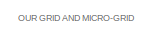
[diagram: root canvas - part 1/4, top center region]
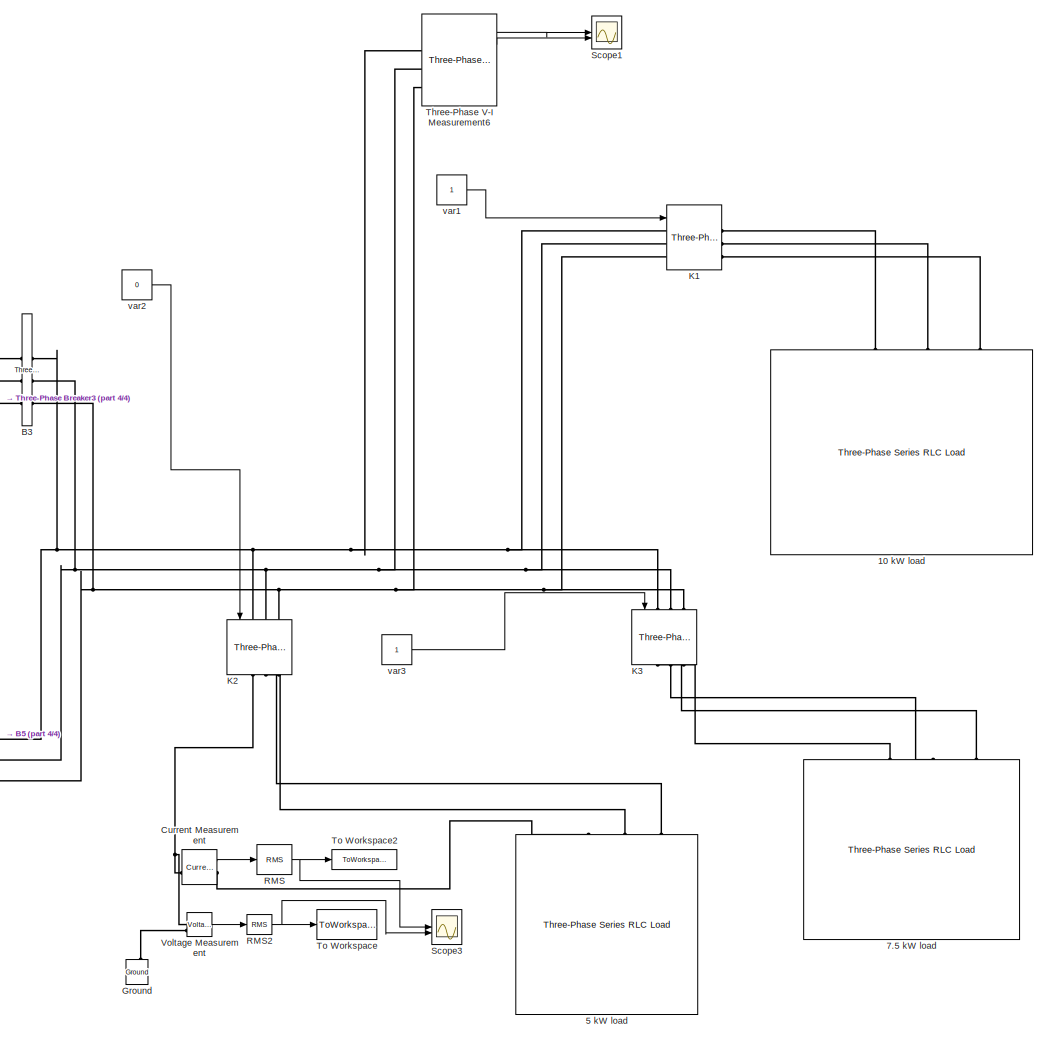
[diagram: root canvas - part 2/4, right side, full height]
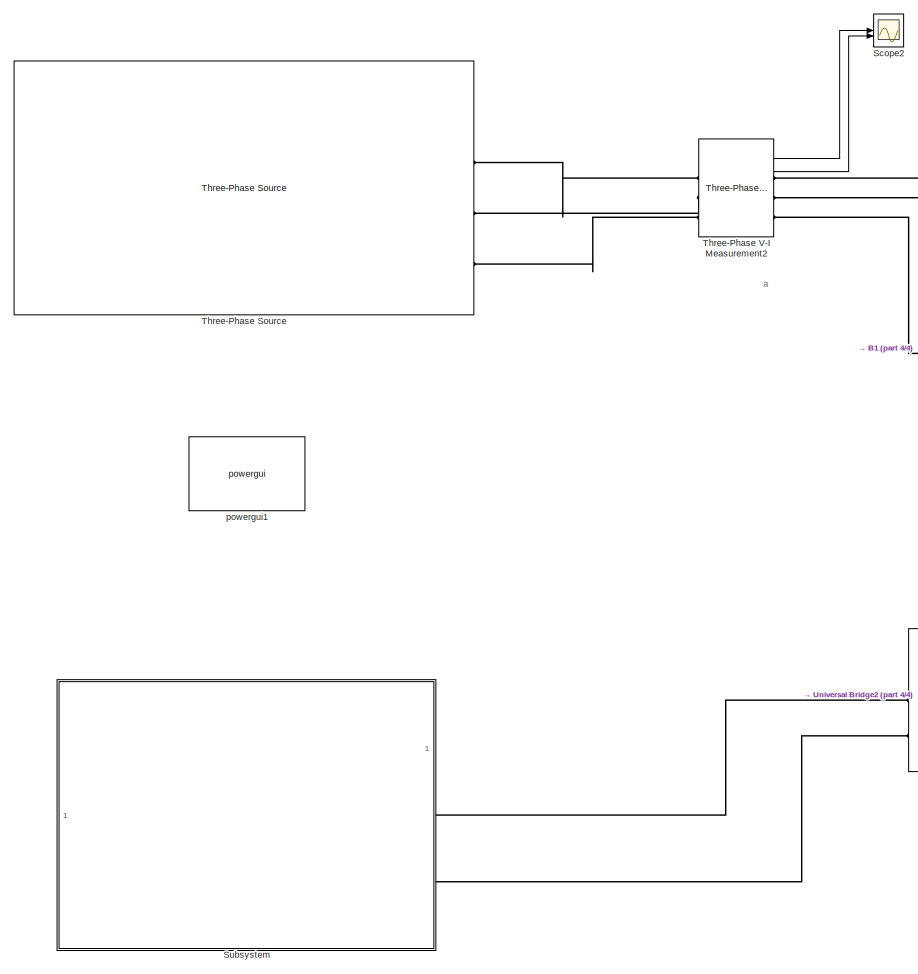
[diagram: root canvas - part 3/4, left side, full height]
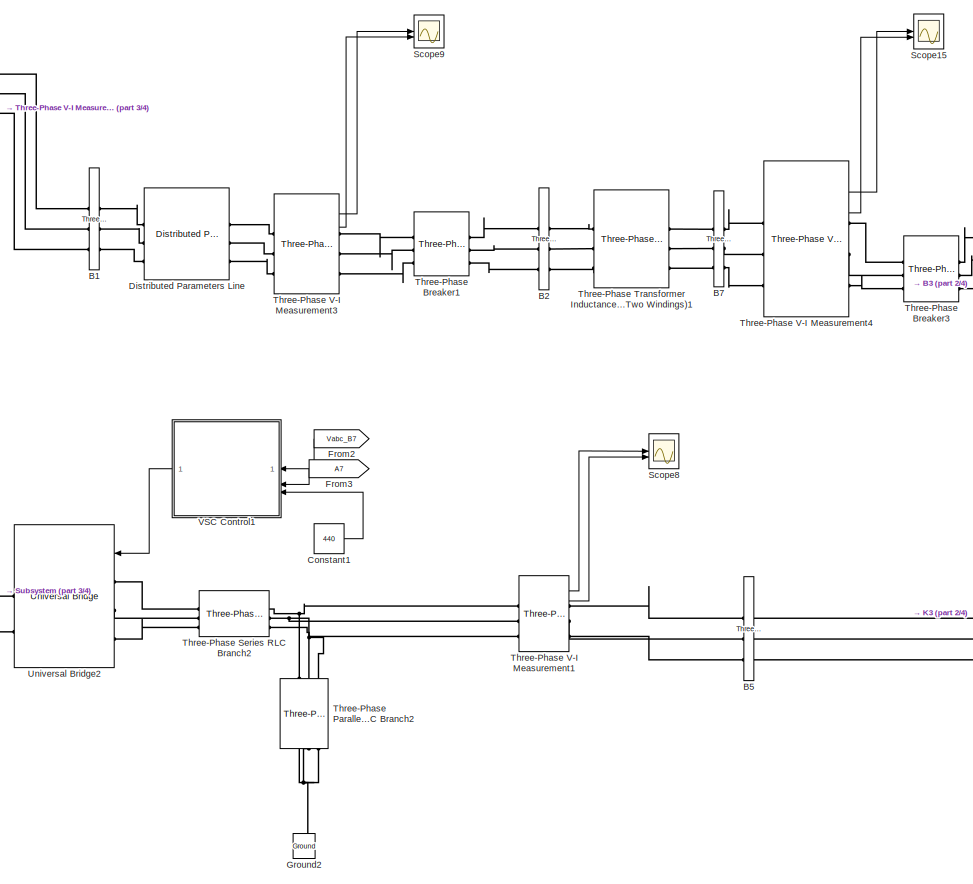
[diagram: root canvas - part 4/4, center side, full height]
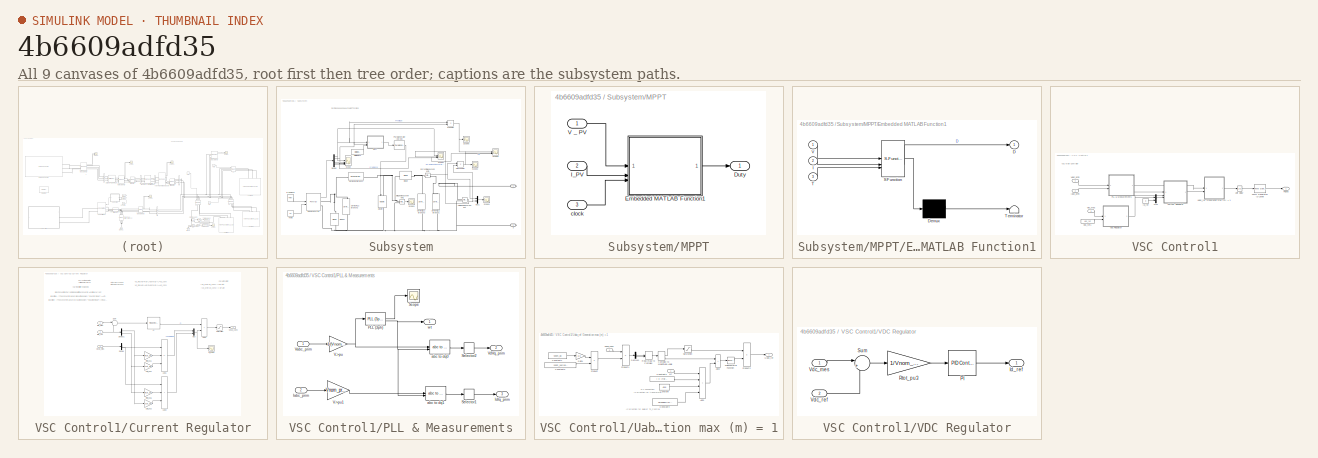
[diagram: thumbnail index - all 9 canvases of the model, root first then tree order]
MODEL slx_4b6609adfd35
KIND model
CONFIG AbsTol = auto
CONFIG EnableMultiTasking = off
CONFIG FixedStep = auto
CONFIG MaxStep = auto
CONFIG MinStep = auto
CONFIG RelTol = 1e-3
CONFIG SampleTimeConstraint = Unconstrained
CONFIG SolverName = VariableStepAuto
CONFIG StartTime = 0.0
CONFIG StopTime = 0.5
BLOCK [Reference] 10 kW load   REF=spsThreePhaseSeriesRLCLoadLib/Three-Phase
Series RLC Load
  AttributesFormatString = \n
  LibrarySourceBlock = sps_lib/Passives/Three-Phase\nSeries RLC Load
  NameLocation = right
  SourceBlock = spsThreePhaseSeriesRLCLoadLib/Three-Phase\nSeries RLC Load
  SourceType = Three-Phase Series RLC Load
BLOCK [Reference] 5 kW load   REF=spsThreePhaseSeriesRLCLoadLib/Three-Phase
Series RLC Load
  AttributesFormatString = \n
  LibrarySourceBlock = sps_lib/Passives/Three-Phase\nSeries RLC Load
  NameLocation = right
  SourceBlock = spsThreePhaseSeriesRLCLoadLib/Three-Phase\nSeries RLC Load
  SourceType = Three-Phase Series RLC Load
BLOCK [Reference] 7.5 kW load   REF=spsThreePhaseSeriesRLCLoadLib/Three-Phase
Series RLC Load
  AttributesFormatString = \n
  LibrarySourceBlock = sps_lib/Passives/Three-Phase\nSeries RLC Load
  NameLocation = right
  SourceBlock = spsThreePhaseSeriesRLCLoadLib/Three-Phase\nSeries RLC Load
  SourceType = Three-Phase Series RLC Load
BLOCK [Reference] B1  REF=spsThreePhaseVIMeasurementLib/Three-Phase
V-I Measurement
  LibrarySourceBlock = sps_lib/Sensors and Measurements/Three-Phase\nV-I Measurement
  NameLocation = top
  SourceBlock = spsThreePhaseVIMeasurementLib/Three-Phase\nV-I Measurement
  SourceType = Three-Phase VI Measurement
BLOCK [Reference] B2  REF=spsThreePhaseVIMeasurementLib/Three-Phase
V-I Measurement
  LibrarySourceBlock = sps_lib/Sensors and Measurements/Three-Phase\nV-I Measurement
  NameLocation = top
  SourceBlock = spsThreePhaseVIMeasurementLib/Three-Phase\nV-I Measurement
  SourceType = Three-Phase VI Measurement
BLOCK [Reference] B3  REF=spsThreePhaseVIMeasurementLib/Three-Phase
V-I Measurement
  LibrarySourceBlock = sps_lib/Sensors and Measurements/Three-Phase\nV-I Measurement
  NameLocation = top
  SourceBlock = spsThreePhaseVIMeasurementLib/Three-Phase\nV-I Measurement
  SourceType = Three-Phase VI Measurement
BLOCK [Reference] B5  REF=spsThreePhaseVIMeasurementLib/Three-Phase
V-I Measurement
  LibrarySourceBlock = sps_lib/Sensors and Measurements/Three-Phase\nV-I Measurement
  NameLocation = top
  SourceBlock = spsThreePhaseVIMeasurementLib/Three-Phase\nV-I Measurement
  SourceType = Three-Phase VI Measurement
BLOCK [Reference] B7  REF=spsThreePhaseVIMeasurementLib/Three-Phase
V-I Measurement
  LibrarySourceBlock = sps_lib/Sensors and Measurements/Three-Phase\nV-I Measurement
  NameLocation = top
  SourceBlock = spsThreePhaseVIMeasurementLib/Three-Phase\nV-I Measurement
  SourceType = Three-Phase VI Measurement
BLOCK [Constant] Constant1
  Value = 440
BLOCK [Reference] Current Measurement  REF=spsCurrentMeasurementLib/Current Measurement
  LibrarySourceBlock = sps_lib/Sensors and Measurements/Current Measurement
  SourceBlock = spsCurrentMeasurementLib/Current Measurement
  SourceType = Current Measurement
  UserDataPersistent = on
BLOCK [Reference] Distributed Parameters Line  REF=spsDistributedParametersLineLib/Distributed Parameters Line
  LibrarySourceBlock = sps_lib/Power Grid Elements/Distributed Parameters Line
  SourceBlock = spsDistributedParametersLineLib/Distributed Parameters Line
  SourceType = Distributed Parameters Line
BLOCK [From] From2
  CloseFcn = tagdialog Close
  GotoTag = Vabc_B7
  TagVisibility = global
BLOCK [From] From3
  CloseFcn = tagdialog Close
  GotoTag = A7
  TagVisibility = global
BLOCK [Reference] Ground  REF=spsGroundLib/Ground
  LibrarySourceBlock = sps_lib/Utilities/Ground
  NameLocation = right
  SourceBlock = spsGroundLib/Ground
  SourceType = Ground
BLOCK [Reference] Ground2  REF=spsGroundLib/Ground
  LibrarySourceBlock = sps_lib/Utilities/Ground
  NameLocation = right
  SourceBlock = spsGroundLib/Ground
  SourceType = Ground
BLOCK [Reference] K1  REF=spsThreePhaseBreakerLib/Three-Phase Breaker
  LibrarySourceBlock = sps_lib/Power Grid Elements/Three-Phase Breaker
  SourceBlock = spsThreePhaseBreakerLib/Three-Phase Breaker
  SourceType = Three-Phase Breaker
BLOCK [Reference] K2  REF=spsThreePhaseBreakerLib/Three-Phase Breaker
  LibrarySourceBlock = sps_lib/Power Grid Elements/Three-Phase Breaker
  NameLocation = left
  SourceBlock = spsThreePhaseBreakerLib/Three-Phase Breaker
  SourceType = Three-Phase Breaker
BLOCK [Reference] K3  REF=spsThreePhaseBreakerLib/Three-Phase Breaker
  LibrarySourceBlock = sps_lib/Power Grid Elements/Three-Phase Breaker
  NameLocation = left
  SourceBlock = spsThreePhaseBreakerLib/Three-Phase Breaker
  SourceType = Three-Phase Breaker
BLOCK [Reference] RMS  REF=spsRMSLib/RMS
  LibrarySourceBlock = sps_lib/Sensors and Measurements/RMS
  SourceBlock = spsRMSLib/RMS
  SourceType = RMS
BLOCK [Reference] RMS2  REF=spsRMSLib/RMS
  LibrarySourceBlock = sps_lib/Sensors and Measurements/RMS
  SourceBlock = spsRMSLib/RMS
  SourceType = RMS
BLOCK [Scope] Scope1
  Floating = off
  NumInputPorts = 2
  ScopeSpecificationString = Simulink.scopes.TimeScopeBlockCfg('CurrentConfiguration', extmgr.ConfigurationSet(extmgr.Configuration('Core','General UI',true),extmgr.Configuration('Core','Source UI',true),extmgr.Configuration('Sources','WiredSimulink',true,'DataLoggingVariableName','ScopeData2'),extmgr.Configuration('Visuals','Time Domain',true,'SerializedDisplays',{struct('MinYLimReal','-540.15063','MaxYLimReal','345.47497','...<+1667ch>
BLOCK [Scope] Scope15
  Floating = off
  NumInputPorts = 2
  ScopeSpecificationString = Simulink.scopes.TimeScopeBlockCfg('CurrentConfiguration', extmgr.ConfigurationSet(extmgr.Configuration('Core','General UI',true),extmgr.Configuration('Core','Source UI',true),extmgr.Configuration('Sources','WiredSimulink',true,'DataLoggingVariableName','ScopeData8','DataLogging',true),extmgr.Configuration('Visuals','Time Domain',true,'SerializedDisplays',{struct('MinYLimReal','-502.03369','MaxYLim...<+2308ch>
BLOCK [Scope] Scope2
  Floating = off
  NumInputPorts = 2
  ScopeSpecificationString = Simulink.scopes.TimeScopeBlockCfg('CurrentConfiguration', extmgr.ConfigurationSet(extmgr.Configuration('Core','General UI',true),extmgr.Configuration('Core','Source UI',true),extmgr.Configuration('Sources','WiredSimulink',true,'DataLoggingVariableName','ScopeData5','DataLoggingLimitDataPoints',true,'DataLoggingSaveFormat','Array','DataLoggingDecimation','1','DataLoggingDecimateData',true),extmgr.C...<+2543ch>
BLOCK [Scope] Scope3
  Floating = off
  NumInputPorts = 2
  ScopeSpecificationString = Simulink.scopes.TimeScopeBlockCfg('CurrentConfiguration', extmgr.ConfigurationSet(extmgr.Configuration('Core','General UI',true),extmgr.Configuration('Core','Source UI',true),extmgr.Configuration('Sources','WiredSimulink',true,'DataLoggingVariableName','ScopeData1'),extmgr.Configuration('Visuals','Time Domain',true,'SerializedDisplays',{struct('MinYLimReal','-5','MaxYLimReal','5','YLabelReal','','...<+2029ch>
BLOCK [Scope] Scope8
  Floating = off
  NumInputPorts = 2
  ScopeSpecificationString = Simulink.scopes.TimeScopeBlockCfg('CurrentConfiguration', extmgr.ConfigurationSet(extmgr.Configuration('Core','General UI',true),extmgr.Configuration('Core','Source UI',true),extmgr.Configuration('Sources','WiredSimulink',true,'DataLoggingVariableName','ScopeData10'),extmgr.Configuration('Visuals','Time Domain',true,'SerializedDisplays',{struct('MinYLimReal','-184.68461','MaxYLimReal','137.80921',...<+2256ch>
BLOCK [Scope] Scope9
  Floating = off
  NumInputPorts = 2
  ScopeSpecificationString = Simulink.scopes.TimeScopeBlockCfg('CurrentConfiguration', extmgr.ConfigurationSet(extmgr.Configuration('Core','General UI',true),extmgr.Configuration('Core','Source UI',true),extmgr.Configuration('Sources','WiredSimulink',true,'DataLoggingVariableName','ScopeData9','DataLoggingLimitDataPoints',true,'DataLoggingSaveFormat','Array','DataLoggingDecimation','1','DataLoggingDecimateData',true),extmgr.C...<+2543ch>
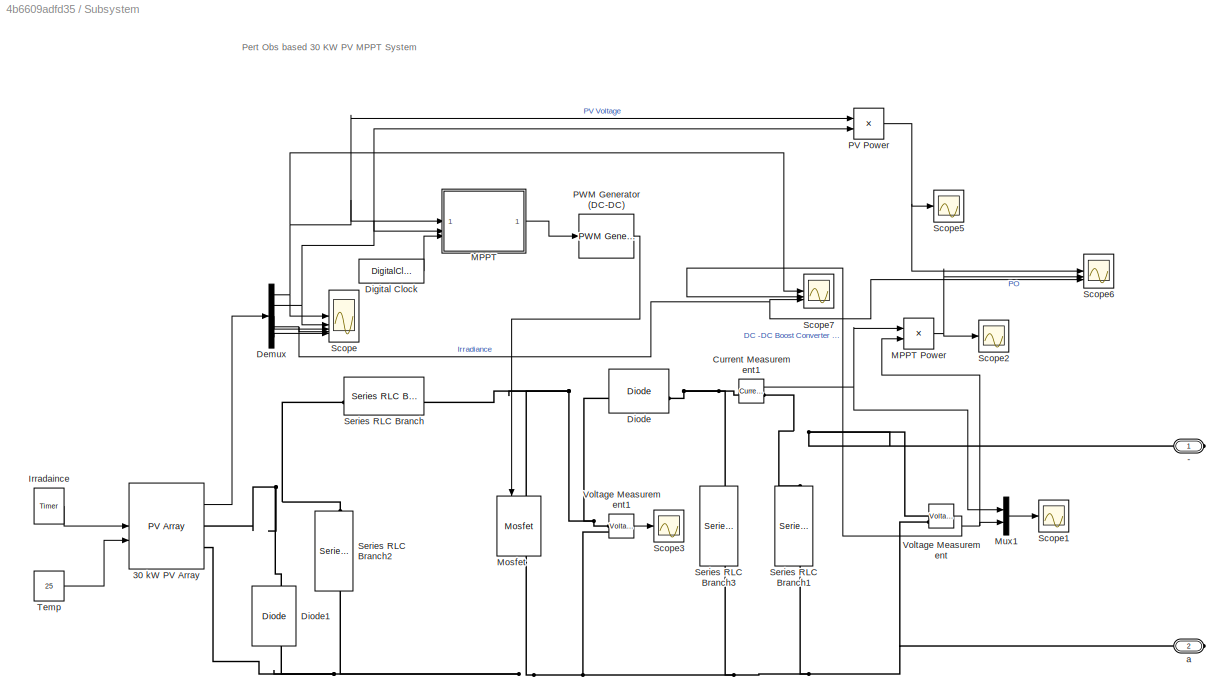
BLOCK [SubSystem] Subsystem
BLOCK [PMIOPort] Subsystem/-
  Side = Right
BLOCK [Reference] Subsystem/30 kW PV Array  REF=spsPVArrayLib/PV Array
  SourceBlock = spsPVArrayLib/PV Array
  SourceType = PV array
BLOCK [Reference] Subsystem/Current Measurement1  REF=spsCurrentMeasurementLib/Current Measurement
  SourceBlock = spsCurrentMeasurementLib/Current Measurement
  SourceType = Current Measurement
  UserDataPersistent = on
BLOCK [Demux] Subsystem/Demux
  Outputs = 5
BLOCK [DigitalClock] Subsystem/Digital Clock
  NameLocation = top
  SampleTime = 0.001
BLOCK [Reference] Subsystem/Diode  REF=spsDiodeLib/Diode
  SourceBlock = spsDiodeLib/Diode
  SourceType = Diode
BLOCK [Reference] Subsystem/Diode1  REF=spsDiodeLib/Diode
  NameLocation = right
  SourceBlock = spsDiodeLib/Diode
  SourceType = Diode
BLOCK [Reference] Subsystem/Irradaince     REF=powerlib_extras/Control 
Blocks/Timer
  SourceBlock = powerlib_extras/Control \nBlocks/Timer
  SourceType = Timer
BLOCK [SubSystem] Subsystem/MPPT
  NameLocation = top
BLOCK [Product] Subsystem/MPPT Power
BLOCK [Outport] Subsystem/MPPT/Duty
  VectorParamsAs1DForOutWhenUnconnected = off
BLOCK [SubSystem] Subsystem/MPPT/Embedded MATLAB Function1
  ErrorFcn = Stateflow.Translate.translate
  PermitHierarchicalResolution = ExplicitOnly
  SFBlockType = MATLAB Function
  TreatAsAtomicUnit = on
BLOCK [Demux] Subsystem/MPPT/Embedded MATLAB Function1/ Demux 
  Outputs = 1
BLOCK [S-Function] Subsystem/MPPT/Embedded MATLAB Function1/ SFunction 
  EnableBusSupport = on
  FunctionName = sf_sfun
  PortCounts = [3 2]
  SFcnIsStateOwnerBlock = off
  SFunctionDeploymentMode = off
  Tag = Stateflow S-Function 1
BLOCK [Terminator] Subsystem/MPPT/Embedded MATLAB Function1/ Terminator 
BLOCK [Outport] Subsystem/MPPT/Embedded MATLAB Function1/D
  VectorParamsAs1DForOutWhenUnconnected = off
BLOCK [Inport] Subsystem/MPPT/Embedded MATLAB Function1/I
  Port = 2
BLOCK [Inport] Subsystem/MPPT/Embedded MATLAB Function1/T
  Port = 3
BLOCK [Inport] Subsystem/MPPT/Embedded MATLAB Function1/V
BLOCK [Inport] Subsystem/MPPT/I_PV
  Port = 2
BLOCK [Inport] Subsystem/MPPT/V _ PV 
BLOCK [Inport] Subsystem/MPPT/clock
  Port = 3
BLOCK [Reference] Subsystem/Mosfet  REF=spsMosfetLib/Mosfet
  NameLocation = left
  SourceBlock = spsMosfetLib/Mosfet
  SourceType = Mosfet
BLOCK [Mux] Subsystem/Mux1
  DisplayOption = bar
  Inputs = 2
BLOCK [Product] Subsystem/PV Power
BLOCK [Reference] Subsystem/PWM Generator (DC-DC)  REF=spsPWMGeneratorDCDCLib/PWM Generator
(DC-DC)
  SourceBlock = spsPWMGeneratorDCDCLib/PWM Generator\n(DC-DC)
  SourceType = PWM Generator (DC-DC)
BLOCK [Scope] Subsystem/Scope
  Floating = off
  NumInputPorts = 5
  ScopeSpecificationString = Simulink.scopes.TimeScopeBlockCfg('CurrentConfiguration', extmgr.ConfigurationSet(extmgr.Configuration('Core','General UI',true,'FigureColor',[1 1 1]),extmgr.Configuration('Core','Source UI',true),extmgr.Configuration('Sources','WiredSimulink',true,'DataLoggingVariableName','ScopeData1'),extmgr.Configuration('Visuals','Time Domain',true,'SerializedDisplays',{struct('MinYLimReal','-24.94226','MaxYL...<+6500ch>
BLOCK [Scope] Subsystem/Scope1
  Floating = off
  NumInputPorts = 1
  ScopeSpecificationString = Simulink.scopes.TimeScopeBlockCfg('CurrentConfiguration', extmgr.ConfigurationSet(extmgr.Configuration('Core','General UI',true,'FigureColor',[1 1 1]),extmgr.Configuration('Core','Source UI',true),extmgr.Configuration('Sources','WiredSimulink',true,'DataLoggingVariableName','ScopeData2'),extmgr.Configuration('Visuals','Time Domain',true,'SerializedDisplays',{struct('MinYLimReal','-152.24088','MaxY...<+2360ch>
BLOCK [Scope] Subsystem/Scope2
  Floating = off
  NumInputPorts = 1
  ScopeSpecificationString = Simulink.scopes.TimeScopeBlockCfg('CurrentConfiguration', extmgr.ConfigurationSet(extmgr.Configuration('Core','General UI',true,'FigureColor',[1 1 1]),extmgr.Configuration('Core','Source UI',true),extmgr.Configuration('Sources','WiredSimulink',true,'DataLoggingVariableName','ScopeData3'),extmgr.Configuration('Visuals','Time Domain',true,'SerializedDisplays',{struct('MinYLimReal','-1628.43866','Max...<+2386ch>
BLOCK [Scope] Subsystem/Scope3
  Floating = off
  NumInputPorts = 1
  ScopeSpecificationString = Simulink.scopes.TimeScopeBlockCfg('CurrentConfiguration', extmgr.ConfigurationSet(extmgr.Configuration('Core','General UI',true,'FigureColor',[1 1 1]),extmgr.Configuration('Core','Source UI',true),extmgr.Configuration('Sources','WiredSimulink',true,'DataLoggingVariableName','ScopeData4'),extmgr.Configuration('Visuals','Time Domain',true,'SerializedDisplays',{struct('MinYLimReal','-64.14617','MaxYL...<+2221ch>
BLOCK [Scope] Subsystem/Scope5
  Floating = off
  NumInputPorts = 1
  ScopeSpecificationString = Simulink.scopes.TimeScopeBlockCfg('CurrentConfiguration', extmgr.ConfigurationSet(extmgr.Configuration('Core','General UI',true,'FigureColor',[1 1 1]),extmgr.Configuration('Core','Source UI',true),extmgr.Configuration('Sources','WiredSimulink',true,'DataLoggingVariableName','ScopeData5'),extmgr.Configuration('Visuals','Time Domain',true,'SerializedDisplays',{struct('MinYLimReal','-1321.41475','Max...<+2294ch>
BLOCK [Scope] Subsystem/Scope6
  Floating = off
  NumInputPorts = 3
  ScopeSpecificationString = Simulink.scopes.TimeScopeBlockCfg('CurrentConfiguration', extmgr.ConfigurationSet(extmgr.Configuration('Core','General UI',true,'FigureColor',[1 1 1]),extmgr.Configuration('Core','Source UI',true),extmgr.Configuration('Sources','WiredSimulink',true,'DataLoggingVariableName','ScopeData6'),extmgr.Configuration('Visuals','Time Domain',true,'SerializedDisplays',{struct('MinYLimReal','-4009.02193','Max...<+3854ch>
BLOCK [Scope] Subsystem/Scope7
  Floating = off
  NumInputPorts = 3
  ScopeSpecificationString = Simulink.scopes.TimeScopeBlockCfg('CurrentConfiguration', extmgr.ConfigurationSet(extmgr.Configuration('Core','General UI',true,'FigureColor',[1 1 1]),extmgr.Configuration('Core','Source UI',true),extmgr.Configuration('Sources','WiredSimulink',true),extmgr.Configuration('Visuals','Time Domain',true,'SerializedDisplays',{struct('MinYLimReal','-34.76085','MaxYLimReal','317.7379','YLabelReal','voltag...<+4173ch>
BLOCK [Reference] Subsystem/Series RLC Branch  REF=spsSeriesRLCBranchLib/Series RLC Branch
  SourceBlock = spsSeriesRLCBranchLib/Series RLC Branch
  SourceType = Series RLC Branch
BLOCK [Reference] Subsystem/Series RLC Branch1  REF=spsSeriesRLCBranchLib/Series RLC Branch
  NameLocation = left
  SourceBlock = spsSeriesRLCBranchLib/Series RLC Branch
  SourceType = Series RLC Branch
BLOCK [Reference] Subsystem/Series RLC Branch2  REF=spsSeriesRLCBranchLib/Series RLC Branch
  NameLocation = left
  SourceBlock = spsSeriesRLCBranchLib/Series RLC Branch
  SourceType = Series RLC Branch
BLOCK [Reference] Subsystem/Series RLC Branch3  REF=spsSeriesRLCBranchLib/Series RLC Branch
  NameLocation = left
  SourceBlock = spsSeriesRLCBranchLib/Series RLC Branch
  SourceType = Series RLC Branch
BLOCK [Constant] Subsystem/Temp 
  Value = 25
BLOCK [Reference] Subsystem/Voltage Measurement  REF=spsVoltageMeasurementLib/Voltage Measurement
  SourceBlock = spsVoltageMeasurementLib/Voltage Measurement
  SourceType = Voltage Measurement
  UserDataPersistent = on
BLOCK [Reference] Subsystem/Voltage Measurement1  REF=spsVoltageMeasurementLib/Voltage Measurement
  SourceBlock = spsVoltageMeasurementLib/Voltage Measurement
  SourceType = Voltage Measurement
  UserDataPersistent = on
BLOCK [PMIOPort] Subsystem/a
  Port = 2
  Side = Right
BLOCK [Reference] Three-Phase Breaker1  REF=spsThreePhaseBreakerLib/Three-Phase Breaker
  LibrarySourceBlock = sps_lib/Power Grid Elements/Three-Phase Breaker
  NameLocation = top
  SourceBlock = spsThreePhaseBreakerLib/Three-Phase Breaker
  SourceType = Three-Phase Breaker
BLOCK [Reference] Three-Phase Breaker3  REF=spsThreePhaseBreakerLib/Three-Phase Breaker
  LibrarySourceBlock = sps_lib/Power Grid Elements/Three-Phase Breaker
  NameLocation = top
  SourceBlock = spsThreePhaseBreakerLib/Three-Phase Breaker
  SourceType = Three-Phase Breaker
BLOCK [Reference] Three-Phase Parallel RLC Branch2  REF=spsThreePhaseParallelRLCBranchLib/Three-Phase
Parallel RLC Branch
  AttributesFormatString = \n
  LibrarySourceBlock = sps_lib/Passives/Three-Phase\nParallel RLC Branch
  NameLocation = left
  SourceBlock = spsThreePhaseParallelRLCBranchLib/Three-Phase\nParallel RLC Branch
  SourceType = Three-Phase Parallel RLC Branch
BLOCK [Reference] Three-Phase Series RLC Branch2  REF=spsThreePhaseSeriesRLCBranchLib/Three-Phase
Series RLC Branch
  AttributesFormatString = \n
  LibrarySourceBlock = sps_lib/Passives/Three-Phase\nSeries RLC Branch
  SourceBlock = spsThreePhaseSeriesRLCBranchLib/Three-Phase\nSeries RLC Branch
  SourceType = Three-Phase Series RLC Branch
BLOCK [Reference] Three-Phase Source  REF=spsThreePhaseSourceLib/Three-Phase Source
  LibrarySourceBlock = sps_lib/Sources/Three-Phase Source
  SourceBlock = spsThreePhaseSourceLib/Three-Phase Source
  SourceType = Three-Phase Source
BLOCK [Reference] Three-Phase Transformer Inductance Matrix Type (Two Windings)1  REF=spsThreePhaseTransformerInductanceMatrixTypeTwoWindingsLib/Three-Phase Transformer
Inductance Matrix Type
(Two Windings)
  LibrarySourceBlock = sps_lib/Power Grid Elements/Three-Phase Transformer\nInductance Matrix Type\n(Two Windings)
  SourceBlock = spsThreePhaseTransformerInductanceMatrixTypeTwoWindingsLib/Three-Phase Transformer\nInductance Matrix Type\n(Two Windings)
  SourceType = Three-Phase Transformer Inductance MatrixType (Two Windings)
BLOCK [Reference] Three-Phase V-I Measurement1  REF=spsThreePhaseVIMeasurementLib/Three-Phase
V-I Measurement
  LibrarySourceBlock = sps_lib/Sensors and Measurements/Three-Phase\nV-I Measurement
  SourceBlock = spsThreePhaseVIMeasurementLib/Three-Phase\nV-I Measurement
  SourceType = Three-Phase VI Measurement
BLOCK [Reference] Three-Phase V-I Measurement2  REF=spsThreePhaseVIMeasurementLib/Three-Phase
V-I Measurement
  LibrarySourceBlock = sps_lib/Sensors and Measurements/Three-Phase\nV-I Measurement
  NameLocation = top
  SourceBlock = spsThreePhaseVIMeasurementLib/Three-Phase\nV-I Measurement
  SourceType = Three-Phase VI Measurement
BLOCK [Reference] Three-Phase V-I Measurement3  REF=spsThreePhaseVIMeasurementLib/Three-Phase
V-I Measurement
  LibrarySourceBlock = sps_lib/Sensors and Measurements/Three-Phase\nV-I Measurement
  NameLocation = top
  SourceBlock = spsThreePhaseVIMeasurementLib/Three-Phase\nV-I Measurement
  SourceType = Three-Phase VI Measurement
BLOCK [Reference] Three-Phase V-I Measurement4  REF=spsThreePhaseVIMeasurementLib/Three-Phase
V-I Measurement
  LibrarySourceBlock = sps_lib/Sensors and Measurements/Three-Phase\nV-I Measurement
  NameLocation = top
  SourceBlock = spsThreePhaseVIMeasurementLib/Three-Phase\nV-I Measurement
  SourceType = Three-Phase VI Measurement
BLOCK [Reference] Three-Phase V-I Measurement6  REF=spsThreePhaseVIMeasurementLib/Three-Phase
V-I Measurement
  LibrarySourceBlock = sps_lib/Sensors and Measurements/Three-Phase\nV-I Measurement
  NameLocation = top
  SourceBlock = spsThreePhaseVIMeasurementLib/Three-Phase\nV-I Measurement
  SourceType = Three-Phase VI Measurement
BLOCK [ToWorkspace] To Workspace
  MaxDataPoints = inf
  SampleTime = -1
  SaveFormat = Timeseries
  VariableName = tension1
BLOCK [ToWorkspace] To Workspace2
  MaxDataPoints = inf
  SampleTime = -1
  SaveFormat = Timeseries
  VariableName = intensite1
BLOCK [Reference] Universal Bridge2  REF=spsUniversalBridgeLib/Universal Bridge
  LibrarySourceBlock = sps_lib/Power Electronics/Universal Bridge
  SourceBlock = spsUniversalBridgeLib/Universal Bridge
  SourceType = Universal Bridge
BLOCK [SubSystem] VSC Control1
  NameLocation = top
BLOCK [SubSystem] VSC Control1/Current Regulator
BLOCK [Sum] VSC Control1/Current Regulator/Add1
  IconShape = rectangular
  Inputs = ++-
BLOCK [Sum] VSC Control1/Current Regulator/Add2
  IconShape = rectangular
BLOCK [Sum] VSC Control1/Current Regulator/Add3
  IconShape = rectangular
  Inputs = +++
BLOCK [Demux] VSC Control1/Current Regulator/Demux
  Outputs = 2
BLOCK [Demux] VSC Control1/Current Regulator/Demux1
  Outputs = 2
BLOCK [Inport] VSC Control1/Current Regulator/IdIq_mes
  Port = 2
  PortDimensions = 2
BLOCK [Inport] VSC Control1/Current Regulator/IdIq_ref
  Port = 3
  PortDimensions = 2
BLOCK [Gain] VSC Control1/Current Regulator/Ltot_pu1
  Gain = Ltot_pu
  OutDataTypeStr = Inherit: Same as input
  ParamDataTypeStr = Inherit: Same as input
  SaturateOnIntegerOverflow = on
BLOCK [Gain] VSC Control1/Current Regulator/Ltot_pu2
  Gain = Ltot_pu
  OutDataTypeStr = Inherit: Same as input
  ParamDataTypeStr = Inherit: Same as input
  SaturateOnIntegerOverflow = on
BLOCK [Mux] VSC Control1/Current Regulator/Mux
  DisplayOption = bar
  Inputs = 2
BLOCK [Reference] VSC Control1/Current Regulator/PI  REF=slpidlib/PID Controller
  SourceBlock = slpidlib/PID Controller
  SourceType = PID 1dof
BLOCK [Scope] VSC Control1/Current Regulator/PI_Ireg1
  Floating = off
  NumInputPorts = 1
  ScopeSpecificationString = Simulink.scopes.TimeScopeBlockCfg('CurrentConfiguration', extmgr.ConfigurationSet(extmgr.Configuration('Core','General UI',true),extmgr.Configuration('Core','Source UI',true),extmgr.Configuration('Sources','WiredSimulink',true,'DataLoggingSaveFormat','Array','DataLoggingDecimation','1','DataLoggingDecimateData',true),extmgr.Configuration('Visuals','Time Domain',true,'DisplayPropertyDefaults',struc...<+826ch>
BLOCK [Gain] VSC Control1/Current Regulator/Rtot_pu1
  Gain = Rtot_pu
  NameLocation = top
  OutDataTypeStr = Inherit: Same as input
  ParamDataTypeStr = Inherit: Same as input
  SaturateOnIntegerOverflow = on
BLOCK [Gain] VSC Control1/Current Regulator/Rtot_pu5
  Gain = Rtot_pu
  NameLocation = top
  OutDataTypeStr = Inherit: Same as input
  ParamDataTypeStr = Inherit: Same as input
  SaturateOnIntegerOverflow = on
BLOCK [Saturate] VSC Control1/Current Regulator/Saturation
  LowerLimit = -2
  UpperLimit = 2
BLOCK [Sum] VSC Control1/Current Regulator/Sum
  Inputs = |-+
BLOCK [Outport] VSC Control1/Current Regulator/VdVq_conv
BLOCK [Inport] VSC Control1/Current Regulator/VdVq_mes
  PortDimensions = 2
BLOCK [Inport] VSC Control1/Iabc_prim
  Port = 2
  PortDimensions = 3
BLOCK [Constant] VSC Control1/Iq_ref
  Value = 0
BLOCK [Mux] VSC Control1/Mux
  DisplayOption = bar
  Inputs = 2
BLOCK [SubSystem] VSC Control1/PLL & Measurements
BLOCK [Inport] VSC Control1/PLL & Measurements/Iabc_prim
  Port = 2
BLOCK [Outport] VSC Control1/PLL & Measurements/IdIq_prim
  Port = 3
BLOCK [Reference] VSC Control1/PLL & Measurements/PLL (3ph)  REF=spsPLL3phLib/PLL
(3ph)
  LibrarySourceBlock = sps_lib/Control/PLL\n(3ph)
  SourceBlock = spsPLL3phLib/PLL\n(3ph)
  SourceType = PLL (3ph)
BLOCK [Scope] VSC Control1/PLL & Measurements/Scope
  Floating = off
  NumInputPorts = 1
  ScopeSpecificationString = Simulink.scopes.TimeScopeBlockCfg('CurrentConfiguration', extmgr.ConfigurationSet(extmgr.Configuration('Core','General UI',true),extmgr.Configuration('Core','Source UI',true),extmgr.Configuration('Sources','WiredSimulink',true,'DataLoggingVariableName','ScopeData1'),extmgr.Configuration('Visuals','Time Domain',true,'SerializedDisplays',{struct('MinYLimReal','40.00000','MaxYLimReal','60.00000','YLa...<+1436ch>
BLOCK [Selector] VSC Control1/PLL & Measurements/Selector1
  IndexOptions = Index vector (dialog)
  Indices = [1 2]
  InputPortWidth = 3
  OutputSizes = 1
BLOCK [Selector] VSC Control1/PLL & Measurements/Selector2
  IndexOptions = Index vector (dialog)
  Indices = [1 2]
  InputPortWidth = 3
  OutputSizes = 1
BLOCK [Gain] VSC Control1/PLL & Measurements/V->pu
  Gain = 1/(Vnom_prim*sqrt(2)/sqrt(3))
  OutDataTypeStr = Inherit: Same as input
  ParamDataTypeStr = Inherit: Same as input
  SaturateOnIntegerOverflow = on
BLOCK [Gain] VSC Control1/PLL & Measurements/V->pu1
  Gain = Vnom_prim*sqrt(3)/Pnom/sqrt(2)
  OutDataTypeStr = Inherit: Same as input
  ParamDataTypeStr = Inherit: Same as input
  SaturateOnIntegerOverflow = on
BLOCK [Inport] VSC Control1/PLL & Measurements/Vabc_prim
BLOCK [Outport] VSC Control1/PLL & Measurements/VdVq_prim
  Port = 2
BLOCK [Reference] VSC Control1/PLL & Measurements/abc to dq0  REF=spsabctodq0Lib/abc to dq0
  LibrarySourceBlock = sps_lib/Control/abc to dq0
  SourceBlock = spsabctodq0Lib/abc to dq0
  SourceType = abc to dq0 Transformation
BLOCK [Reference] VSC Control1/PLL & Measurements/abc to dq1  REF=spsabctodq0Lib/abc to dq0
  LibrarySourceBlock = sps_lib/Control/abc to dq0
  SourceBlock = spsabctodq0Lib/abc to dq0
  SourceType = abc to dq0 Transformation
BLOCK [Outport] VSC Control1/PLL & Measurements/wt
BLOCK [Reference] VSC Control1/PWM Generator (2-Level)  REF=spsPWMGenerator2LevelLib/PWM Generator
(2-Level)
  LibrarySourceBlock = sps_lib/Power Electronics/Power Electronics Control/PWM Generator\n(2-Level)
  SourceBlock = spsPWMGenerator2LevelLib/PWM Generator\n(2-Level)
  SourceType = PWM Generator (2-Level)
BLOCK [Outport] VSC Control1/Pulses
  NameLocation = top
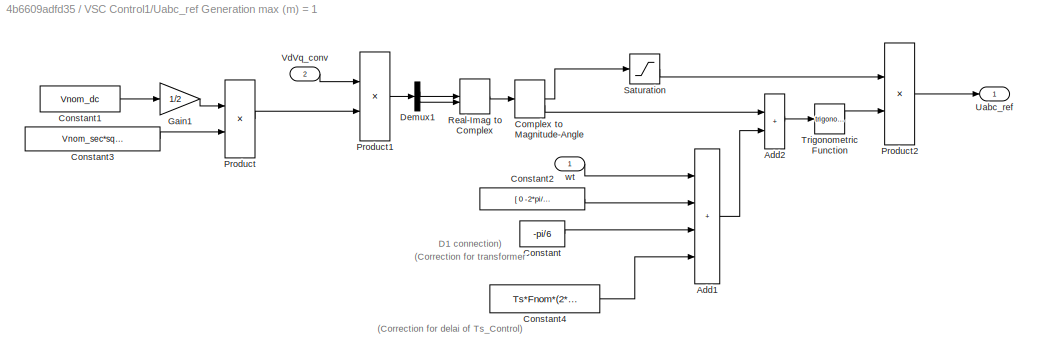
BLOCK [SubSystem] VSC Control1/Uabc_ref Generation max (m) = 1
BLOCK [Sum] VSC Control1/Uabc_ref Generation max (m) = 1/Add1
  IconShape = rectangular
  Inputs = ++++
BLOCK [Sum] VSC Control1/Uabc_ref Generation max (m) = 1/Add2
  IconShape = rectangular
BLOCK [ComplexToMagnitudeAngle] VSC Control1/Uabc_ref Generation max (m) = 1/Complex to Magnitude-Angle
BLOCK [Constant] VSC Control1/Uabc_ref Generation max (m) = 1/Constant
  Value = -pi/6
BLOCK [Constant] VSC Control1/Uabc_ref Generation max (m) = 1/Constant1
  Value = Vnom_dc
BLOCK [Constant] VSC Control1/Uabc_ref Generation max (m) = 1/Constant2
  Value = [ 0  -2*pi/3  2*pi/3  ]
BLOCK [Constant] VSC Control1/Uabc_ref Generation max (m) = 1/Constant3
  Value = Vnom_sec*sqrt(2)/sqrt(3)
BLOCK [Constant] VSC Control1/Uabc_ref Generation max (m) = 1/Constant4
  Value = Ts*Fnom*(2*pi)
BLOCK [Demux] VSC Control1/Uabc_ref Generation max (m) = 1/Demux1
  Outputs = 2
BLOCK [Gain] VSC Control1/Uabc_ref Generation max (m) = 1/Gain1
  Gain = 1/2
BLOCK [Product] VSC Control1/Uabc_ref Generation max (m) = 1/Product
  Inputs = */
  RndMeth = Zero
BLOCK [Product] VSC Control1/Uabc_ref Generation max (m) = 1/Product1
  Inputs = */
  RndMeth = Zero
BLOCK [Product] VSC Control1/Uabc_ref Generation max (m) = 1/Product2
  Inputs = **
  RndMeth = Zero
BLOCK [RealImagToComplex] VSC Control1/Uabc_ref Generation max (m) = 1/Real-Imag to Complex
BLOCK [Saturate] VSC Control1/Uabc_ref Generation max (m) = 1/Saturation
  LowerLimit = 0
  UpperLimit = 1
BLOCK [Trigonometry] VSC Control1/Uabc_ref Generation max (m) = 1/Trigonometric Function
BLOCK [Outport] VSC Control1/Uabc_ref Generation max (m) = 1/Uabc_ref
BLOCK [Inport] VSC Control1/Uabc_ref Generation max (m) = 1/VdVq_conv
  Port = 2
BLOCK [Inport] VSC Control1/Uabc_ref Generation max (m) = 1/wt
BLOCK [UnitDelay] VSC Control1/Unit Delay
  HasFrameUpgradeWarning = on
  SampleTime = 50e-6
BLOCK [SubSystem] VSC Control1/VDC Regulator
BLOCK [Outport] VSC Control1/VDC Regulator/Id_ref
  InitialOutput = 0
  SampleTime = Ts
BLOCK [Reference] VSC Control1/VDC Regulator/PI  REF=slpidlib/PID Controller
  SourceBlock = slpidlib/PID Controller
  SourceType = PID 1dof
BLOCK [Gain] VSC Control1/VDC Regulator/Rtot_pu3
  Gain = 1/Vnom_dc
  OutDataTypeStr = Inherit: Same as input
  ParamDataTypeStr = Inherit: Same as input
  SaturateOnIntegerOverflow = on
BLOCK [Sum] VSC Control1/VDC Regulator/Sum
  Inputs = |+-
BLOCK [Inport] VSC Control1/VDC Regulator/Vdc_mes
  PortDimensions = 1
BLOCK [Inport] VSC Control1/VDC Regulator/Vdc_ref
  Port = 2
  PortDimensions = 1
BLOCK [Inport] VSC Control1/Vabc_prim
  PortDimensions = 3
BLOCK [Inport] VSC Control1/Vdc_mes
  Port = 3
  PortDimensions = 1
BLOCK [Constant] VSC Control1/Vdc_ref1
  Value = Vdc_ref
BLOCK [Reference] Voltage Measurement  REF=spsVoltageMeasurementLib/Voltage Measurement
  LibrarySourceBlock = sps_lib/Sensors and Measurements/Voltage Measurement
  SourceBlock = spsVoltageMeasurementLib/Voltage Measurement
  SourceType = Voltage Measurement
  UserDataPersistent = on
BLOCK [Reference] powergui1  REF=spspowerguiLib/powergui
  Priority = 1
  SourceBlock = spspowerguiLib/powergui
  SourceType = PSB option menu block
BLOCK [Constant] var1
BLOCK [Constant] var2
  Value = 0
BLOCK [Constant] var3
ANNOTATION (root): OUR GRID AND MICRO-GRID
ANNOTATION (root): a
ANNOTATION Subsystem: Pert Obs based 30 KW PV MPPT System
ANNOTATION VSC Control1: VSC Main Controller
ANNOTATION VSC Control1/Current Regulator: (Vd_prim - Vd_conv) ~= + Iq * Ltot
ANNOTATION VSC Control1/Current Regulator: (Vq_prim - Vq_conv) ~ = - Id * Ltot
ANNOTATION VSC Control1/Current Regulator: Current Regulator (with feedforward)
ANNOTATION VSC Control1/Current Regulator: For Ltot >> Rtot :
ANNOTATION VSC Control1/Current Regulator: Id positive --> The converter generates active power ("Inverter mode") = Active Power P positive
ANNOTATION VSC Control1/Current Regulator: Iq positive --> The converter absorbs reactive power ("Inductive mode") = Reactive Power Q negative
ANNOTATION VSC Control1/Current Regulator: Ltot = Lxfo + Lchoke Rtot = Rxfo + Rchoke
ANNOTATION VSC Control1/Current Regulator: Sign Convention: Current going out of the converter = positive current
ANNOTATION VSC Control1/Current Regulator: Vd_mes + Id*R - Iq*L + deriv(Id)*L= Vd_conv
ANNOTATION VSC Control1/Current Regulator: Vq_mes + Id*L + Iq*R + deriv(Iq)*L= Vq_conv
ANNOTATION VSC Control1/Current Regulator: harmonic filter neglected
ANNOTATION VSC Control1/Uabc_ref Generation max (m) = 1: (Correction for delai of Ts_Control)
ANNOTATION VSC Control1/Uabc_ref Generation max (m) = 1: (Correction for transformer D1 connection)
LINE Constant1:1 -> VSC Control1:3
LINE Current Measurement:1 -> RMS:1
LINE From2:1 -> VSC Control1:1
LINE From3:1 -> VSC Control1:2
NET RMS2:1 -> Scope3:2, To Workspace:1
NET RMS:1 -> Scope3:1, To Workspace2:1
LINE Subsystem/30 kW PV Array:1 -> Subsystem/Demux:1
NET Subsystem/Current Measurement1:1 -> Subsystem/MPPT Power:1, Subsystem/Mux1:1
NET Subsystem/Demux:1 -> Subsystem/MPPT:1, Subsystem/PV Power:1, Subsystem/Scope7:1, Subsystem/Scope:1
NET Subsystem/Demux:2 -> Subsystem/MPPT:2, Subsystem/PV Power:2, Subsystem/Scope:2
LINE Subsystem/Demux:3 -> Subsystem/Scope:3
NET Subsystem/Demux:4 -> Subsystem/Scope6:3, Subsystem/Scope7:3, Subsystem/Scope:4
LINE Subsystem/Demux:5 -> Subsystem/Scope:5
LINE Subsystem/Digital Clock:1 -> Subsystem/MPPT:3
LINE Subsystem/Irradaince   :1 -> Subsystem/30 kW PV Array:1
NET Subsystem/MPPT Power:1 -> Subsystem/Scope2:1, Subsystem/Scope6:2
LINE Subsystem/MPPT/Embedded MATLAB Function1:1 -> Subsystem/MPPT/Duty:1
LINE Subsystem/MPPT/I_PV:1 -> Subsystem/MPPT/Embedded MATLAB Function1:2
LINE Subsystem/MPPT/V _ PV :1 -> Subsystem/MPPT/Embedded MATLAB Function1:1
LINE Subsystem/MPPT/clock:1 -> Subsystem/MPPT/Embedded MATLAB Function1:3
LINE Subsystem/MPPT:1 -> Subsystem/PWM Generator (DC-DC):1
LINE Subsystem/Mux1:1 -> Subsystem/Scope1:1
NET Subsystem/PV Power:1 -> Subsystem/Scope5:1, Subsystem/Scope6:1
LINE Subsystem/PWM Generator (DC-DC):1 -> Subsystem/Mosfet:1
LINE Subsystem/Temp :1 -> Subsystem/30 kW PV Array:2
LINE Subsystem/Voltage Measurement1:1 -> Subsystem/Scope3:1
NET Subsystem/Voltage Measurement:1 -> Subsystem/MPPT Power:2, Subsystem/Mux1:2, Subsystem/Scope7:2
LINE Three-Phase V-I Measurement1:1 -> Scope8:1
LINE Three-Phase V-I Measurement1:2 -> Scope8:2
LINE Three-Phase V-I Measurement2:1 -> Scope2:1
LINE Three-Phase V-I Measurement2:2 -> Scope2:2
LINE Three-Phase V-I Measurement3:1 -> Scope9:1
LINE Three-Phase V-I Measurement3:2 -> Scope9:2
LINE Three-Phase V-I Measurement4:1 -> Scope15:1
LINE Three-Phase V-I Measurement4:2 -> Scope15:2
LINE Three-Phase V-I Measurement6:1 -> Scope1:1
LINE Three-Phase V-I Measurement6:2 -> Scope1:2
LINE VSC Control1/Current Regulator/Add1:1 -> VSC Control1/Current Regulator/Mux:1
LINE VSC Control1/Current Regulator/Add2:1 -> VSC Control1/Current Regulator/Saturation:1
LINE VSC Control1/Current Regulator/Add3:1 -> VSC Control1/Current Regulator/Mux:2
NET VSC Control1/Current Regulator/Demux1:1 -> VSC Control1/Current Regulator/Ltot_pu2:1, VSC Control1/Current Regulator/Rtot_pu1:1
NET VSC Control1/Current Regulator/Demux1:2 -> VSC Control1/Current Regulator/Ltot_pu1:1, VSC Control1/Current Regulator/Rtot_pu5:1
LINE VSC Control1/Current Regulator/Demux:1 -> VSC Control1/Current Regulator/Add1:1
LINE VSC Control1/Current Regulator/Demux:2 -> VSC Control1/Current Regulator/Add3:1
LINE VSC Control1/Current Regulator/IdIq_mes:1 -> VSC Control1/Current Regulator/Sum:1
NET VSC Control1/Current Regulator/IdIq_ref:1 -> VSC Control1/Current Regulator/Demux1:1, VSC Control1/Current Regulator/Sum:2
LINE VSC Control1/Current Regulator/Ltot_pu1:1 -> VSC Control1/Current Regulator/Add1:3
LINE VSC Control1/Current Regulator/Ltot_pu2:1 -> VSC Control1/Current Regulator/Add3:3
NET VSC Control1/Current Regulator/Mux:1 -> VSC Control1/Current Regulator/Add2:2, VSC Control1/Current Regulator/PI_Ireg1:1
LINE VSC Control1/Current Regulator/PI:1 -> VSC Control1/Current Regulator/Add2:1
LINE VSC Control1/Current Regulator/Rtot_pu1:1 -> VSC Control1/Current Regulator/Add1:2
LINE VSC Control1/Current Regulator/Rtot_pu5:1 -> VSC Control1/Current Regulator/Add3:2
LINE VSC Control1/Current Regulator/Saturation:1 -> VSC Control1/Current Regulator/VdVq_conv:1
LINE VSC Control1/Current Regulator/Sum:1 -> VSC Control1/Current Regulator/PI:1
LINE VSC Control1/Current Regulator/VdVq_mes:1 -> VSC Control1/Current Regulator/Demux:1
LINE VSC Control1/Current Regulator:1 -> VSC Control1/Uabc_ref Generation max (m) = 1:2
LINE VSC Control1/Iabc_prim:1 -> VSC Control1/PLL & Measurements:2
LINE VSC Control1/Iq_ref:1 -> VSC Control1/Mux:2
LINE VSC Control1/Mux:1 -> VSC Control1/Current Regulator:3
LINE VSC Control1/PLL & Measurements/Iabc_prim:1 -> VSC Control1/PLL & Measurements/V->pu1:1
LINE VSC Control1/PLL & Measurements/PLL (3ph):1 -> VSC Control1/PLL & Measurements/Scope:1
NET VSC Control1/PLL & Measurements/PLL (3ph):2 -> VSC Control1/PLL & Measurements/abc to dq0:2, VSC Control1/PLL & Measurements/abc to dq1:2, VSC Control1/PLL & Measurements/wt:1
LINE VSC Control1/PLL & Measurements/Selector1:1 -> VSC Control1/PLL & Measurements/IdIq_prim:1
LINE VSC Control1/PLL & Measurements/Selector2:1 -> VSC Control1/PLL & Measurements/VdVq_prim:1
LINE VSC Control1/PLL & Measurements/V->pu1:1 -> VSC Control1/PLL & Measurements/abc to dq1:1
NET VSC Control1/PLL & Measurements/V->pu:1 -> VSC Control1/PLL & Measurements/PLL (3ph):1, VSC Control1/PLL & Measurements/abc to dq0:1
LINE VSC Control1/PLL & Measurements/Vabc_prim:1 -> VSC Control1/PLL & Measurements/V->pu:1
LINE VSC Control1/PLL & Measurements/abc to dq0:1 -> VSC Control1/PLL & Measurements/Selector2:1
LINE VSC Control1/PLL & Measurements/abc to dq1:1 -> VSC Control1/PLL & Measurements/Selector1:1
LINE VSC Control1/PLL & Measurements:1 -> VSC Control1/Uabc_ref Generation max (m) = 1:1
LINE VSC Control1/PLL & Measurements:2 -> VSC Control1/Current Regulator:1
LINE VSC Control1/PLL & Measurements:3 -> VSC Control1/Current Regulator:2
LINE VSC Control1/PWM Generator (2-Level):1 -> VSC Control1/Pulses:1
LINE VSC Control1/Uabc_ref Generation max (m) = 1/Add1:1 -> VSC Control1/Uabc_ref Generation max (m) = 1/Add2:2
LINE VSC Control1/Uabc_ref Generation max (m) = 1/Add2:1 -> VSC Control1/Uabc_ref Generation max (m) = 1/Trigonometric Function:1
LINE VSC Control1/Uabc_ref Generation max (m) = 1/Complex to Magnitude-Angle:1 -> VSC Control1/Uabc_ref Generation max (m) = 1/Saturation:1
LINE VSC Control1/Uabc_ref Generation max (m) = 1/Complex to Magnitude-Angle:2 -> VSC Control1/Uabc_ref Generation max (m) = 1/Add2:1
LINE VSC Control1/Uabc_ref Generation max (m) = 1/Constant1:1 -> VSC Control1/Uabc_ref Generation max (m) = 1/Gain1:1
LINE VSC Control1/Uabc_ref Generation max (m) = 1/Constant2:1 -> VSC Control1/Uabc_ref Generation max (m) = 1/Add1:2
LINE VSC Control1/Uabc_ref Generation max (m) = 1/Constant3:1 -> VSC Control1/Uabc_ref Generation max (m) = 1/Product:2
LINE VSC Control1/Uabc_ref Generation max (m) = 1/Constant4:1 -> VSC Control1/Uabc_ref Generation max (m) = 1/Add1:4
LINE VSC Control1/Uabc_ref Generation max (m) = 1/Constant:1 -> VSC Control1/Uabc_ref Generation max (m) = 1/Add1:3
LINE VSC Control1/Uabc_ref Generation max (m) = 1/Demux1:1 -> VSC Control1/Uabc_ref Generation max (m) = 1/Real-Imag to Complex:1
LINE VSC Control1/Uabc_ref Generation max (m) = 1/Demux1:2 -> VSC Control1/Uabc_ref Generation max (m) = 1/Real-Imag to Complex:2
LINE VSC Control1/Uabc_ref Generation max (m) = 1/Gain1:1 -> VSC Control1/Uabc_ref Generation max (m) = 1/Product:1
LINE VSC Control1/Uabc_ref Generation max (m) = 1/Product1:1 -> VSC Control1/Uabc_ref Generation max (m) = 1/Demux1:1
LINE VSC Control1/Uabc_ref Generation max (m) = 1/Product2:1 -> VSC Control1/Uabc_ref Generation max (m) = 1/Uabc_ref:1
LINE VSC Control1/Uabc_ref Generation max (m) = 1/Product:1 -> VSC Control1/Uabc_ref Generation max (m) = 1/Product1:2
LINE VSC Control1/Uabc_ref Generation max (m) = 1/Real-Imag to Complex:1 -> VSC Control1/Uabc_ref Generation max (m) = 1/Complex to Magnitude-Angle:1
LINE VSC Control1/Uabc_ref Generation max (m) = 1/Saturation:1 -> VSC Control1/Uabc_ref Generation max (m) = 1/Product2:1
LINE VSC Control1/Uabc_ref Generation max (m) = 1/Trigonometric Function:1 -> VSC Control1/Uabc_ref Generation max (m) = 1/Product2:2
LINE VSC Control1/Uabc_ref Generation max (m) = 1/VdVq_conv:1 -> VSC Control1/Uabc_ref Generation max (m) = 1/Product1:1
LINE VSC Control1/Uabc_ref Generation max (m) = 1/wt:1 -> VSC Control1/Uabc_ref Generation max (m) = 1/Add1:1
LINE VSC Control1/Uabc_ref Generation max (m) = 1:1 -> VSC Control1/Unit Delay:1
LINE VSC Control1/Unit Delay:1 -> VSC Control1/PWM Generator (2-Level):1
LINE VSC Control1/VDC Regulator/PI:1 -> VSC Control1/VDC Regulator/Id_ref:1
LINE VSC Control1/VDC Regulator/Rtot_pu3:1 -> VSC Control1/VDC Regulator/PI:1
LINE VSC Control1/VDC Regulator/Sum:1 -> VSC Control1/VDC Regulator/Rtot_pu3:1
LINE VSC Control1/VDC Regulator/Vdc_mes:1 -> VSC Control1/VDC Regulator/Sum:1
LINE VSC Control1/VDC Regulator/Vdc_ref:1 -> VSC Control1/VDC Regulator/Sum:2
LINE VSC Control1/VDC Regulator:1 -> VSC Control1/Mux:1
LINE VSC Control1/Vabc_prim:1 -> VSC Control1/PLL & Measurements:1
LINE VSC Control1/Vdc_mes:1 -> VSC Control1/VDC Regulator:1
LINE VSC Control1/Vdc_ref1:1 -> VSC Control1/VDC Regulator:2
LINE VSC Control1:1 -> Universal Bridge2:1
LINE Voltage Measurement:1 -> RMS2:1
LINE var1:1 -> K1:1
LINE var2:1 -> K2:1
LINE var3:1 -> K3:1
PLINE 10 kW load :LConn1 -- K1:RConn1
PLINE 10 kW load :LConn2 -- K1:RConn2
PLINE 10 kW load :LConn3 -- K1:RConn3
PLINE 5 kW load :LConn1 -- Current Measurement:RConn1
PLINE 5 kW load :LConn2 -- K2:RConn2
PLINE 5 kW load :LConn3 -- K2:RConn3
PLINE 7.5 kW load :LConn1 -- K3:RConn1
PLINE 7.5 kW load :LConn2 -- K3:RConn2
PLINE 7.5 kW load :LConn3 -- K3:RConn3
PLINE B1:LConn1 -- Distributed Parameters Line:LConn1
PLINE B1:LConn2 -- Distributed Parameters Line:LConn2
PLINE B1:LConn3 -- Distributed Parameters Line:LConn3
PLINE B1:RConn1 -- Three-Phase V-I Measurement2:RConn1
PLINE B1:RConn2 -- Three-Phase V-I Measurement2:RConn2
PLINE B1:RConn3 -- Three-Phase V-I Measurement2:RConn3
PLINE B2:LConn1 -- Three-Phase Transformer Inductance Matrix Type (Two Windings)1:LConn1
PLINE B2:LConn2 -- Three-Phase Transformer Inductance Matrix Type (Two Windings)1:LConn2
PLINE B2:LConn3 -- Three-Phase Transformer Inductance Matrix Type (Two Windings)1:LConn3
PLINE B2:RConn1 -- Three-Phase Breaker1:LConn1
PLINE B2:RConn2 -- Three-Phase Breaker1:LConn2
PLINE B2:RConn3 -- Three-Phase Breaker1:LConn3
PNET net1: B3:LConn1 -- B5:LConn1 -- K1:LConn1 -- K2:LConn1 -- K3:LConn1 -- Three-Phase V-I Measurement6:LConn1
PNET net2: B3:LConn2 -- B5:LConn2 -- K1:LConn2 -- K2:LConn2 -- K3:LConn2 -- Three-Phase V-I Measurement6:LConn2
PNET net3: B3:LConn3 -- B5:LConn3 -- K1:LConn3 -- K2:LConn3 -- K3:LConn3 -- Three-Phase V-I Measurement6:LConn3
PLINE B3:RConn1 -- Three-Phase Breaker3:RConn1
PLINE B3:RConn2 -- Three-Phase Breaker3:RConn2
PLINE B3:RConn3 -- Three-Phase Breaker3:RConn3
PLINE B5:RConn1 -- Three-Phase V-I Measurement1:RConn1
PLINE B5:RConn2 -- Three-Phase V-I Measurement1:RConn2
PLINE B5:RConn3 -- Three-Phase V-I Measurement1:RConn3
PLINE B7:LConn1 -- Three-Phase V-I Measurement4:LConn1
PLINE B7:LConn2 -- Three-Phase V-I Measurement4:LConn2
PLINE B7:LConn3 -- Three-Phase V-I Measurement4:LConn3
PLINE B7:RConn1 -- Three-Phase Transformer Inductance Matrix Type (Two Windings)1:RConn1
PLINE B7:RConn2 -- Three-Phase Transformer Inductance Matrix Type (Two Windings)1:RConn2
PLINE B7:RConn3 -- Three-Phase Transformer Inductance Matrix Type (Two Windings)1:RConn3
PNET net4: Current Measurement:LConn1 -- K2:RConn1 -- Voltage Measurement:LConn1
PLINE Distributed Parameters Line:RConn1 -- Three-Phase V-I Measurement3:LConn1
PLINE Distributed Parameters Line:RConn2 -- Three-Phase V-I Measurement3:LConn2
PLINE Distributed Parameters Line:RConn3 -- Three-Phase V-I Measurement3:LConn3
PNET net5: Ground2:LConn1 -- Three-Phase Parallel RLC Branch2:RConn1 -- Three-Phase Parallel RLC Branch2:RConn2 -- Three-Phase Parallel RLC Branch2:RConn3
PLINE Ground:LConn1 -- Voltage Measurement:LConn2
PNET net6: Subsystem/-:RConn1 -- Subsystem/Current Measurement1:RConn1 -- Subsystem/Series RLC Branch1:LConn1 -- Subsystem/Voltage Measurement:LConn1
PNET net7: Subsystem/30 kW PV Array:RConn1 -- Subsystem/Diode1:RConn1 -- Subsystem/Series RLC Branch2:LConn1 -- Subsystem/Series RLC Branch:LConn1
PNET net8: Subsystem/30 kW PV Array:RConn2 -- Subsystem/Diode1:LConn1 -- Subsystem/Mosfet:RConn1 -- Subsystem/Series RLC Branch1:RConn1 -- Subsystem/Series RLC Branch2:RConn1 -- Subsystem/Series RLC Branch3:RConn1 -- Subsystem/Voltage Measurement1:LConn2 -- Subsystem/Voltage Measurement:LConn2 -- Subsystem/a:RConn1
PNET net9: Subsystem/Current Measurement1:LConn1 -- Subsystem/Diode:RConn1 -- Subsystem/Series RLC Branch3:LConn1
PNET net10: Subsystem/Diode:LConn1 -- Subsystem/Mosfet:LConn1 -- Subsystem/Series RLC Branch:RConn1 -- Subsystem/Voltage Measurement1:LConn1
PLINE Subsystem:RConn1 -- Universal Bridge2:RConn1
PLINE Subsystem:RConn2 -- Universal Bridge2:RConn2
PLINE Three-Phase Breaker1:RConn1 -- Three-Phase V-I Measurement3:RConn1
PLINE Three-Phase Breaker1:RConn2 -- Three-Phase V-I Measurement3:RConn2
PLINE Three-Phase Breaker1:RConn3 -- Three-Phase V-I Measurement3:RConn3
PLINE Three-Phase Breaker3:LConn1 -- Three-Phase V-I Measurement4:RConn1
PLINE Three-Phase Breaker3:LConn2 -- Three-Phase V-I Measurement4:RConn2
PLINE Three-Phase Breaker3:LConn3 -- Three-Phase V-I Measurement4:RConn3
PNET net11: Three-Phase Parallel RLC Branch2:LConn1 -- Three-Phase Series RLC Branch2:RConn1 -- Three-Phase V-I Measurement1:LConn1
PNET net12: Three-Phase Parallel RLC Branch2:LConn2 -- Three-Phase Series RLC Branch2:RConn2 -- Three-Phase V-I Measurement1:LConn2
PNET net13: Three-Phase Parallel RLC Branch2:LConn3 -- Three-Phase Series RLC Branch2:RConn3 -- Three-Phase V-I Measurement1:LConn3
PLINE Three-Phase Series RLC Branch2:LConn1 -- Universal Bridge2:LConn1
PLINE Three-Phase Series RLC Branch2:LConn2 -- Universal Bridge2:LConn2
PLINE Three-Phase Series RLC Branch2:LConn3 -- Universal Bridge2:LConn3
PLINE Three-Phase Source:RConn1 -- Three-Phase V-I Measurement2:LConn1
PLINE Three-Phase Source:RConn2 -- Three-Phase V-I Measurement2:LConn2
PLINE Three-Phase Source:RConn3 -- Three-Phase V-I Measurement2:LConn3
note: NET lines group one-source signal fan-out (src -> all destinations, sorted); 1:1 wires keep LINE; PNET lines group multi-terminal physical nets as a canonical sorted terminal list (undirected conserving connections); 2-terminal nets keep the pairwise PLINE form
CHART Subsystem/MPPT/Embedded
MATLAB Function1 states=1 transitions=1
  STATE_LABEL 'eML_blk_kernel()'
  STATE_LABEL 'SCRIPT:\nfunction D   = PO(V,I,T)\npersistent P2  P1  dP d dd n;\nif isempty(V)\n    V=370;\nend\nif isempty(I)\n    I=0;\nend\nif isempty(P2)\n    P2=0;\nend\nif isempty(P1)\n    P1=0;\nend\nif isempty(dP)\n    dP=0;\nend\nif isempty(d)\n    d=1;\nend\nif isempty(dd)\n    dd=0;\nend\nif isempty(n)\n    n=1;\nend\n%%%%%%%%%%%%%%%%%%%%%\n    if  (T > n*0.02)   %chu ki lay mau 0.02s\n    n = n + 1;\n    P1=P2;\n    P2=V*I;\n    dP...<+632ch>'
CHART  states=0 transitions=0
